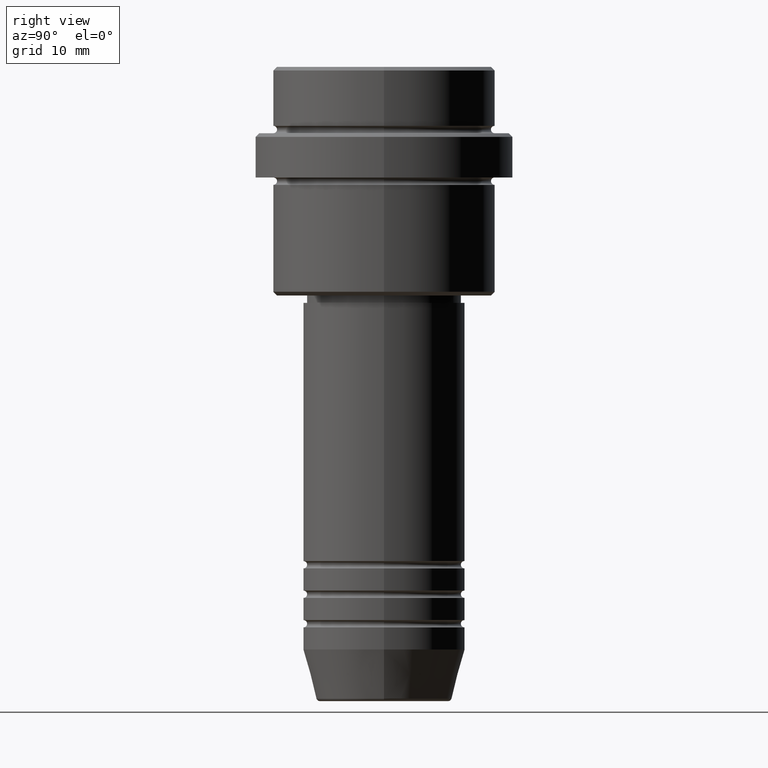
[diagram: clean part render]
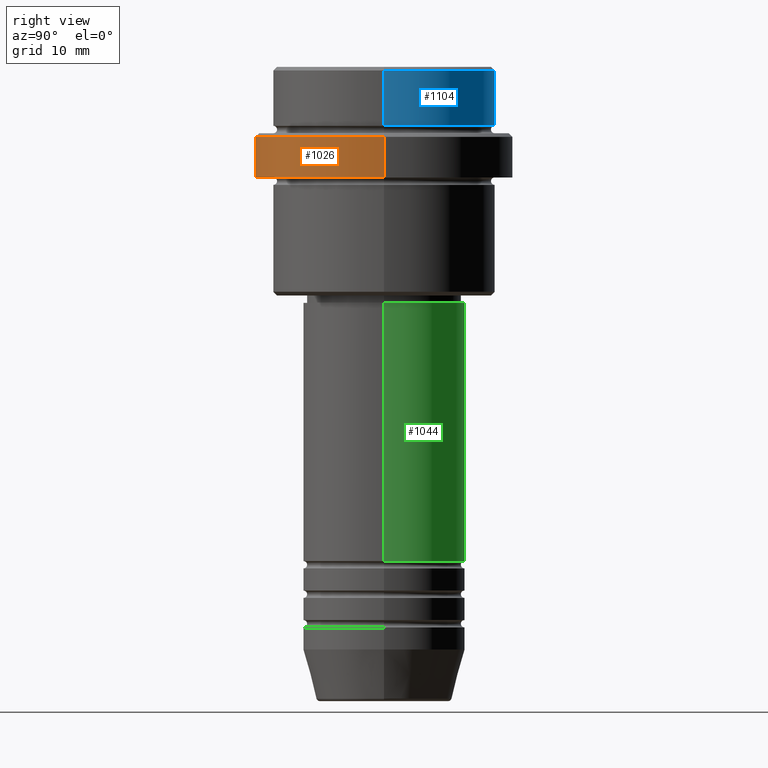
[diagram: same view with three faces highlighted in distinct colors, each labeled with its STEP entity id]
A machine part, right view with three faces highlighted in distinct colors.
Their STEP definitions:

[orange] entity #1026 — the highlighted cylindrical surface (partial cylindrical patch) has radius 17.5 mm, axis along (-0, -0, 1).
#71 = EDGE_CURVE ( 'NONE', #431, #209, #785, .T. ) ;
#130 = VERTEX_POINT ( 'NONE', #145 ) ;
#145 = CARTESIAN_POINT ( 'NONE',  ( -17.50000000000000000, 2.143131898507868248E-15, -9.500000000000000000 ) ) ;
#153 = DIRECTION ( 'NONE',  ( -0.000000000000000000, -0.000000000000000000, 1.000000000000000000 ) ) ;
#176 = CIRCLE ( 'NONE', #592, 17.50000000000000000 ) ;
#187 = CARTESIAN_POINT ( 'NONE',  ( 0.000000000000000000, 0.000000000000000000, -15.00000000000000000 ) ) ;
#209 = VERTEX_POINT ( 'NONE', #1171 ) ;
#217 = VECTOR ( 'NONE', #153, 1000.000000000000000 ) ;
#246 = FACE_OUTER_BOUND ( 'NONE', #748, .T. ) ;
#279 = EDGE_CURVE ( 'NONE', #1215, #130, #176, .T. ) ;
#282 = DIRECTION ( 'NONE',  ( 1.000000000000000000, 0.000000000000000000, 0.000000000000000000 ) ) ;
#380 = CARTESIAN_POINT ( 'NONE',  ( -17.50000000000000000, 2.143131898507868248E-15, -15.00000000000000000 ) ) ;
#431 = VERTEX_POINT ( 'NONE', #380 ) ;
#508 = CARTESIAN_POINT ( 'NONE',  ( -17.50000000000000000, 2.143131898507868248E-15, 0.000000000000000000 ) ) ;
#524 = AXIS2_PLACEMENT_3D ( 'NONE', #187, #615, #1350 ) ;
#578 = ORIENTED_EDGE ( 'NONE', *, *, #71, .T. ) ;
#592 = AXIS2_PLACEMENT_3D ( 'NONE', #739, #946, #1166 ) ;
#615 = DIRECTION ( 'NONE',  ( -0.000000000000000000, -0.000000000000000000, 1.000000000000000000 ) ) ;
#712 = LINE ( 'NONE', #508, #721 ) ;
#721 = VECTOR ( 'NONE', #913, 1000.000000000000000 ) ;
#739 = CARTESIAN_POINT ( 'NONE',  ( 0.000000000000000000, 0.000000000000000000, -9.500000000000000000 ) ) ;
#748 = EDGE_LOOP ( 'NONE', ( #1155, #578, #1102, #1315 ) ) ;
#785 = CIRCLE ( 'NONE', #524, 17.50000000000000000 ) ;
#852 = CYLINDRICAL_SURFACE ( 'NONE', #1371, 17.50000000000000000 ) ;
#913 = DIRECTION ( 'NONE',  ( -0.000000000000000000, -0.000000000000000000, 1.000000000000000000 ) ) ;
#946 = DIRECTION ( 'NONE',  ( 0.000000000000000000, 0.000000000000000000, -1.000000000000000000 ) ) ;
#1026 = ADVANCED_FACE ( 'NONE', ( #246 ), #852, .T. ) ;
#1064 = EDGE_CURVE ( 'NONE', #431, #130, #712, .T. ) ;
#1083 = CARTESIAN_POINT ( 'NONE',  ( 17.50000000000000000, 0.000000000000000000, -9.500000000000000000 ) ) ;
#1102 = ORIENTED_EDGE ( 'NONE', *, *, #1186, .T. ) ;
#1122 = DIRECTION ( 'NONE',  ( -0.000000000000000000, -0.000000000000000000, 1.000000000000000000 ) ) ;
#1155 = ORIENTED_EDGE ( 'NONE', *, *, #1064, .F. ) ;
#1158 = LINE ( 'NONE', #1273, #217 ) ;
#1166 = DIRECTION ( 'NONE',  ( 1.000000000000000000, 0.000000000000000000, 0.000000000000000000 ) ) ;
#1171 = CARTESIAN_POINT ( 'NONE',  ( 17.50000000000000000, 0.000000000000000000, -15.00000000000000000 ) ) ;
#1186 = EDGE_CURVE ( 'NONE', #209, #1215, #1158, .T. ) ;
#1215 = VERTEX_POINT ( 'NONE', #1083 ) ;
#1273 = CARTESIAN_POINT ( 'NONE',  ( 17.50000000000000000, 0.000000000000000000, 0.000000000000000000 ) ) ;
#1289 = CARTESIAN_POINT ( 'NONE',  ( 0.000000000000000000, 0.000000000000000000, 0.000000000000000000 ) ) ;
#1315 = ORIENTED_EDGE ( 'NONE', *, *, #279, .T. ) ;
#1350 = DIRECTION ( 'NONE',  ( 1.000000000000000000, 0.000000000000000000, 0.000000000000000000 ) ) ;
#1371 = AXIS2_PLACEMENT_3D ( 'NONE', #1289, #1122, #282 ) ;

[blue] entity #1104 — the highlighted cylindrical surface (partial cylindrical patch) has radius 15 mm, axis along (-0, -0, 1).
#11 = CARTESIAN_POINT ( 'NONE',  ( 15.00000000000000000, 0.000000000000000000, -7.999999999999998224 ) ) ;
#36 = ORIENTED_EDGE ( 'NONE', *, *, #901, .T. ) ;
#84 = CARTESIAN_POINT ( 'NONE',  ( 0.000000000000000000, 0.000000000000000000, 0.000000000000000000 ) ) ;
#102 = EDGE_CURVE ( 'NONE', #200, #470, #243, .T. ) ;
#180 = DIRECTION ( 'NONE',  ( -0.000000000000000000, -0.000000000000000000, 1.000000000000000000 ) ) ;
#200 = VERTEX_POINT ( 'NONE', #529 ) ;
#229 = EDGE_CURVE ( 'NONE', #1314, #470, #1157, .T. ) ;
#243 = CIRCLE ( 'NONE', #828, 15.00000000000000000 ) ;
#321 = DIRECTION ( 'NONE',  ( 1.000000000000000000, 0.000000000000000000, 0.000000000000000000 ) ) ;
#353 = ORIENTED_EDGE ( 'NONE', *, *, #102, .T. ) ;
#364 = EDGE_LOOP ( 'NONE', ( #860, #36, #353, #557 ) ) ;
#398 = CARTESIAN_POINT ( 'NONE',  ( -15.00000000000000000, 1.836970198721029589E-15, 0.000000000000000000 ) ) ;
#426 = CARTESIAN_POINT ( 'NONE',  ( 15.00000000000000000, 0.000000000000000000, 0.000000000000000000 ) ) ;
#446 = VERTEX_POINT ( 'NONE', #503 ) ;
#470 = VERTEX_POINT ( 'NONE', #582 ) ;
#503 = CARTESIAN_POINT ( 'NONE',  ( -15.00000000000000000, 1.836970198721029589E-15, -7.999999999999998224 ) ) ;
#505 = AXIS2_PLACEMENT_3D ( 'NONE', #84, #1392, #321 ) ;
#529 = CARTESIAN_POINT ( 'NONE',  ( -15.00000000000000000, 1.836970198721029589E-15, -0.4999999999999970024 ) ) ;
#549 = CIRCLE ( 'NONE', #895, 15.00000000000000000 ) ;
#553 = EDGE_CURVE ( 'NONE', #1314, #446, #549, .T. ) ;
#557 = ORIENTED_EDGE ( 'NONE', *, *, #229, .F. ) ;
#582 = CARTESIAN_POINT ( 'NONE',  ( 15.00000000000000000, 0.000000000000000000, -0.4999999999999970024 ) ) ;
#773 = DIRECTION ( 'NONE',  ( -0.000000000000000000, -0.000000000000000000, 1.000000000000000000 ) ) ;
#828 = AXIS2_PLACEMENT_3D ( 'NONE', #850, #1286, #1080 ) ;
#842 = DIRECTION ( 'NONE',  ( 1.000000000000000000, 0.000000000000000000, 0.000000000000000000 ) ) ;
#850 = CARTESIAN_POINT ( 'NONE',  ( 0.000000000000000000, 0.000000000000000000, -0.4999999999999970024 ) ) ;
#860 = ORIENTED_EDGE ( 'NONE', *, *, #553, .T. ) ;
#895 = AXIS2_PLACEMENT_3D ( 'NONE', #1156, #1384, #842 ) ;
#901 = EDGE_CURVE ( 'NONE', #446, #200, #1140, .T. ) ;
#936 = FACE_OUTER_BOUND ( 'NONE', #364, .T. ) ;
#1080 = DIRECTION ( 'NONE',  ( 1.000000000000000000, 0.000000000000000000, 0.000000000000000000 ) ) ;
#1104 = ADVANCED_FACE ( 'NONE', ( #936 ), #1267, .T. ) ;
#1140 = LINE ( 'NONE', #398, #1144 ) ;
#1144 = VECTOR ( 'NONE', #180, 1000.000000000000000 ) ;
#1156 = CARTESIAN_POINT ( 'NONE',  ( 0.000000000000000000, 0.000000000000000000, -7.999999999999998224 ) ) ;
#1157 = LINE ( 'NONE', #426, #1188 ) ;
#1188 = VECTOR ( 'NONE', #773, 1000.000000000000000 ) ;
#1267 = CYLINDRICAL_SURFACE ( 'NONE', #505, 15.00000000000000000 ) ;
#1286 = DIRECTION ( 'NONE',  ( 0.000000000000000000, 0.000000000000000000, -1.000000000000000000 ) ) ;
#1314 = VERTEX_POINT ( 'NONE', #11 ) ;
#1384 = DIRECTION ( 'NONE',  ( -0.000000000000000000, -0.000000000000000000, 1.000000000000000000 ) ) ;
#1392 = DIRECTION ( 'NONE',  ( -0.000000000000000000, -0.000000000000000000, 1.000000000000000000 ) ) ;

[green] entity #1044 — the highlighted cylindrical surface (partial cylindrical patch) has radius 11 mm, axis along (-0, -0, 1).
#48 = CARTESIAN_POINT ( 'NONE',  ( 10.99999999999999822, 0.000000000000000000, -32.00000000000000000 ) ) ;
#62 = EDGE_CURVE ( 'NONE', #357, #702, #1243, .T. ) ;
#75 = AXIS2_PLACEMENT_3D ( 'NONE', #682, #884, #1318 ) ;
#158 = CARTESIAN_POINT ( 'NONE',  ( 0.000000000000000000, 0.000000000000000000, 0.000000000000000000 ) ) ;
#275 = CARTESIAN_POINT ( 'NONE',  ( 11.00000000000000000, 0.000000000000000000, -66.99999999999988631 ) ) ;
#299 = DIRECTION ( 'NONE',  ( -0.000000000000000000, -0.000000000000000000, 1.000000000000000000 ) ) ;
#351 = EDGE_CURVE ( 'NONE', #1055, #357, #430, .T. ) ;
#357 = VERTEX_POINT ( 'NONE', #788 ) ;
#366 = VECTOR ( 'NONE', #299, 1000.000000000000000 ) ;
#377 = DIRECTION ( 'NONE',  ( -0.000000000000000000, -0.000000000000000000, 1.000000000000000000 ) ) ;
#390 = CYLINDRICAL_SURFACE ( 'NONE', #827, 11.00000000000000000 ) ;
#408 = CARTESIAN_POINT ( 'NONE',  ( -11.00000000000000000, 1.347111479062088405E-15, 0.000000000000000000 ) ) ;
#430 = CIRCLE ( 'NONE', #75, 11.00000000000000000 ) ;
#537 = ORIENTED_EDGE ( 'NONE', *, *, #577, .F. ) ;
#554 = EDGE_LOOP ( 'NONE', ( #686, #932, #1217, #537 ) ) ;
#577 = EDGE_CURVE ( 'NONE', #1055, #959, #1398, .T. ) ;
#612 = VECTOR ( 'NONE', #1069, 1000.000000000000000 ) ;
#651 = AXIS2_PLACEMENT_3D ( 'NONE', #1357, #377, #1353 ) ;
#682 = CARTESIAN_POINT ( 'NONE',  ( 0.000000000000000000, 0.000000000000000000, -66.99999999999988631 ) ) ;
#686 = ORIENTED_EDGE ( 'NONE', *, *, #351, .T. ) ;
#702 = VERTEX_POINT ( 'NONE', #1028 ) ;
#750 = CARTESIAN_POINT ( 'NONE',  ( 11.00000000000000000, 0.000000000000000000, 0.000000000000000000 ) ) ;
#788 = CARTESIAN_POINT ( 'NONE',  ( -11.00000000000000000, 1.347111479062088405E-15, -66.99999999999988631 ) ) ;
#813 = DIRECTION ( 'NONE',  ( 1.000000000000000000, 0.000000000000000000, 0.000000000000000000 ) ) ;
#827 = AXIS2_PLACEMENT_3D ( 'NONE', #158, #887, #813 ) ;
#884 = DIRECTION ( 'NONE',  ( -0.000000000000000000, -0.000000000000000000, 1.000000000000000000 ) ) ;
#887 = DIRECTION ( 'NONE',  ( -0.000000000000000000, -0.000000000000000000, 1.000000000000000000 ) ) ;
#932 = ORIENTED_EDGE ( 'NONE', *, *, #62, .T. ) ;
#959 = VERTEX_POINT ( 'NONE', #48 ) ;
#1015 = CIRCLE ( 'NONE', #651, 10.99999999999999822 ) ;
#1017 = FACE_OUTER_BOUND ( 'NONE', #554, .T. ) ;
#1028 = CARTESIAN_POINT ( 'NONE',  ( -10.99999999999999822, 1.347111479062088207E-15, -32.00000000000000000 ) ) ;
#1044 = ADVANCED_FACE ( 'NONE', ( #1017 ), #390, .T. ) ;
#1055 = VERTEX_POINT ( 'NONE', #275 ) ;
#1069 = DIRECTION ( 'NONE',  ( -0.000000000000000000, -0.000000000000000000, 1.000000000000000000 ) ) ;
#1217 = ORIENTED_EDGE ( 'NONE', *, *, #1386, .F. ) ;
#1243 = LINE ( 'NONE', #408, #366 ) ;
#1318 = DIRECTION ( 'NONE',  ( 1.000000000000000000, 0.000000000000000000, 0.000000000000000000 ) ) ;
#1353 = DIRECTION ( 'NONE',  ( 1.000000000000000000, 0.000000000000000000, 0.000000000000000000 ) ) ;
#1357 = CARTESIAN_POINT ( 'NONE',  ( 0.000000000000000000, 0.000000000000000000, -32.00000000000000000 ) ) ;
#1386 = EDGE_CURVE ( 'NONE', #959, #702, #1015, .T. ) ;
#1398 = LINE ( 'NONE', #750, #612 ) ;